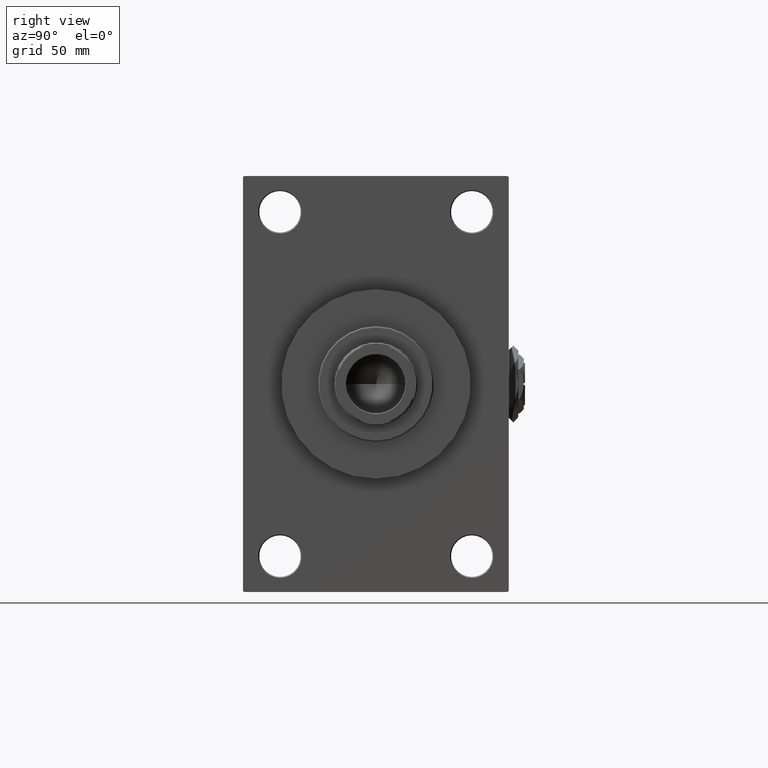
[diagram: clean part render]
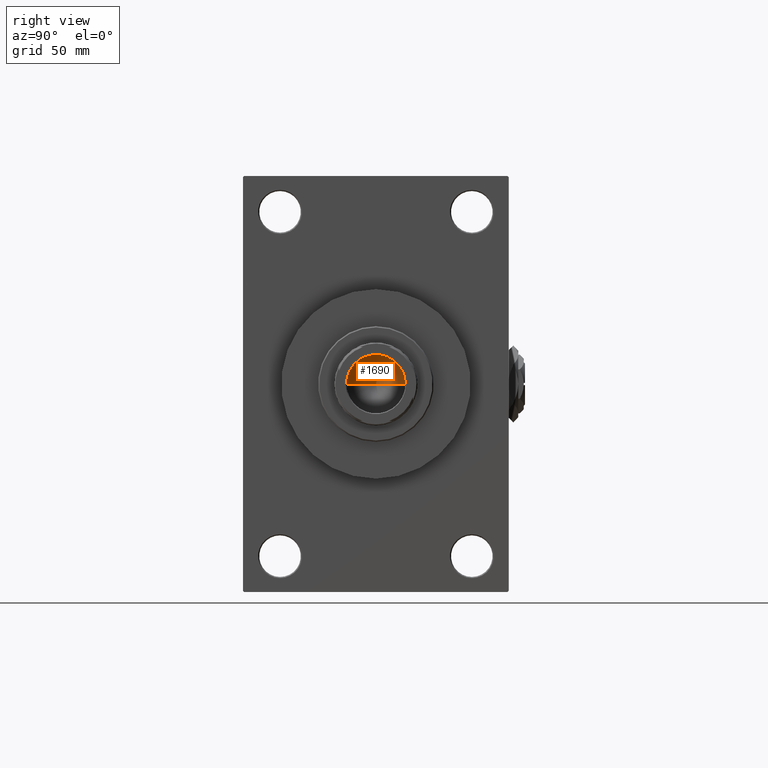
[diagram: same view with one face highlighted and labeled with its STEP entity id]
A machine part, right view. The second image highlights one B-rep face of the part: STEP entity #1690.
In plain terms, the highlighted conical surface has half-angle 59 deg.
Its self-contained STEP definition (entity closure, byte-faithful):
#1690 = ADVANCED_FACE ( 'NONE', ( #45662 ), #40676, .F. ) ;
#3472 = CARTESIAN_POINT ( 'NONE',  ( -12.74999999999998934, 1.561424668912873928E-15, 121.0000000000000142 ) ) ;
#3583 = EDGE_CURVE ( 'NONE', #46354, #45129, #43776, .T. ) ;
#7424 = CARTESIAN_POINT ( 'NONE',  ( 0.000000000000000000, 0.000000000000000000, 121.0000000000000142 ) ) ;
#9639 = VERTEX_POINT ( 'NONE', #3472 ) ;
#10362 = DIRECTION ( 'NONE',  ( -0.000000000000000000, -0.000000000000000000, 1.000000000000000000 ) ) ;
#10513 = CIRCLE ( 'NONE', #44044, 12.74999999999998934 ) ;
#11433 = DIRECTION ( 'NONE',  ( 1.000000000000000000, 0.000000000000000000, 0.000000000000000000 ) ) ;
#11907 = CARTESIAN_POINT ( 'NONE',  ( 12.74999999999998934, 0.000000000000000000, 121.0000000000000142 ) ) ;
#13254 = EDGE_CURVE ( 'NONE', #9639, #45129, #10513, .T. ) ;
#15673 = ORIENTED_EDGE ( 'NONE', *, *, #48247, .T. ) ;
#17368 = LINE ( 'NONE', #32612, #28267 ) ;
#17536 = CARTESIAN_POINT ( 'NONE',  ( -1.410643066818227497E-14, 0.000000000000000000, 113.3390271073986071 ) ) ;
#18870 = DIRECTION ( 'NONE',  ( 1.000000000000000000, 0.000000000000000000, 0.000000000000000000 ) ) ;
#22446 = ORIENTED_EDGE ( 'NONE', *, *, #13254, .T. ) ;
#22949 = DIRECTION ( 'NONE',  ( -0.000000000000000000, -0.000000000000000000, 1.000000000000000000 ) ) ;
#24617 = DIRECTION ( 'NONE',  ( -0.8571673007021117785, 1.049727191138617956E-16, 0.5150380749100550437 ) ) ;
#28267 = VECTOR ( 'NONE', #24617, 1000.000000000000000 ) ;
#28799 = CARTESIAN_POINT ( 'NONE',  ( 12.74999999999998934, 0.000000000000000000, 121.0000000000000142 ) ) ;
#31213 = VECTOR ( 'NONE', #40028, 1000.000000000000000 ) ;
#32588 = ORIENTED_EDGE ( 'NONE', *, *, #3583, .F. ) ;
#32612 = CARTESIAN_POINT ( 'NONE',  ( -12.74999999999998934, 1.561424668912873928E-15, 121.0000000000000142 ) ) ;
#40028 = DIRECTION ( 'NONE',  ( 0.8571673007021117785, 0.000000000000000000, 0.5150380749100550437 ) ) ;
#40676 = CONICAL_SURFACE ( 'NONE', #43884, 12.74999999999998934, 1.029744258676653423 ) ;
#41102 = CARTESIAN_POINT ( 'NONE',  ( 0.000000000000000000, 0.000000000000000000, 121.0000000000000142 ) ) ;
#43776 = LINE ( 'NONE', #28799, #31213 ) ;
#43884 = AXIS2_PLACEMENT_3D ( 'NONE', #7424, #22949, #11433 ) ;
#44044 = AXIS2_PLACEMENT_3D ( 'NONE', #41102, #10362, #18870 ) ;
#45129 = VERTEX_POINT ( 'NONE', #11907 ) ;
#45662 = FACE_OUTER_BOUND ( 'NONE', #47562, .T. ) ;
#46354 = VERTEX_POINT ( 'NONE', #17536 ) ;
#47562 = EDGE_LOOP ( 'NONE', ( #32588, #15673, #22446 ) ) ;
#48247 = EDGE_CURVE ( 'NONE', #46354, #9639, #17368, .T. ) ;